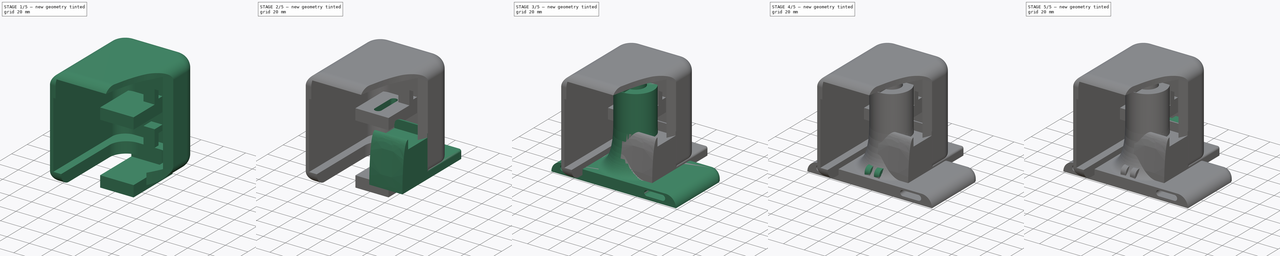
[diagram: build sequence overview — one tinted view per stage of 5, left to right]
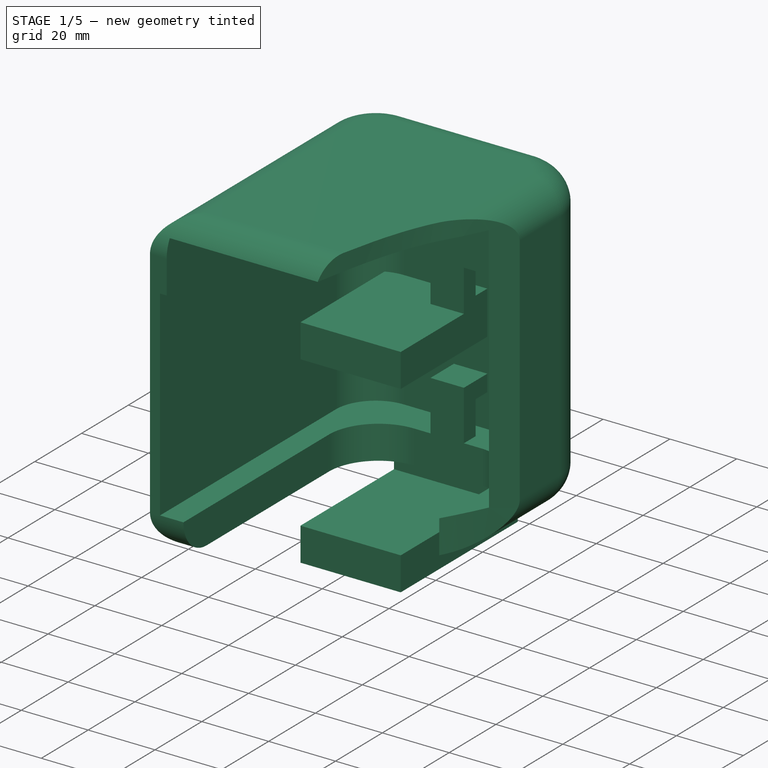
[diagram: stage 1 of 5 — iso view after this stage's code; geometry added in this stage tinted green]
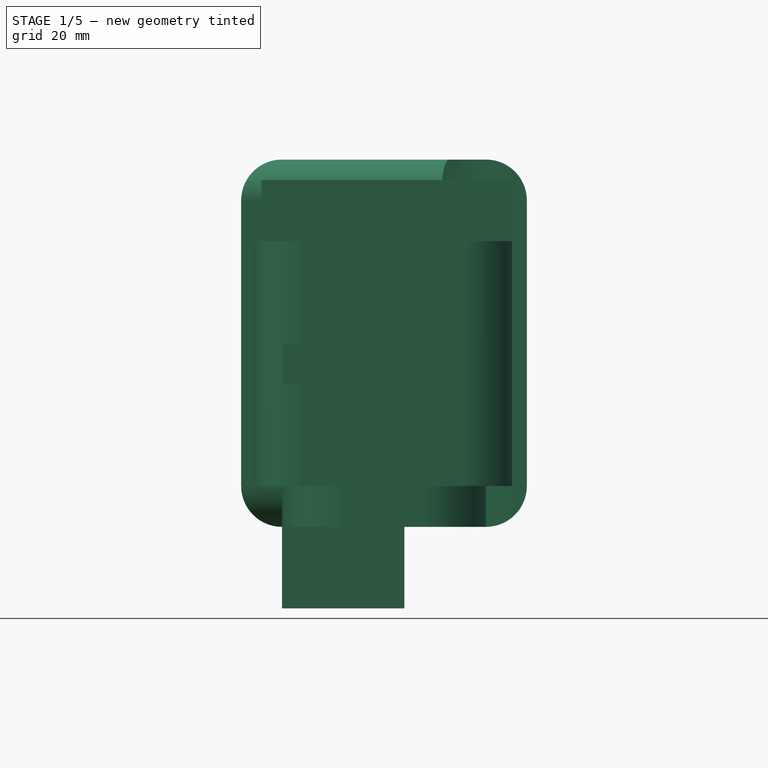
[diagram: stage 1 of 5 — front view after this stage's code; geometry added in this stage tinted green]
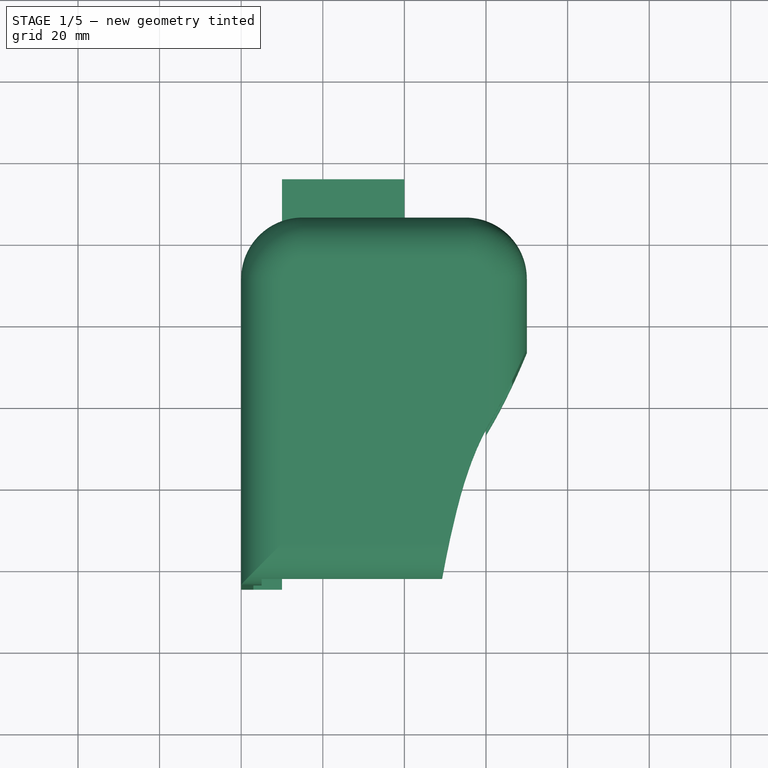
[diagram: stage 1 of 5 — top view after this stage's code; geometry added in this stage tinted green]
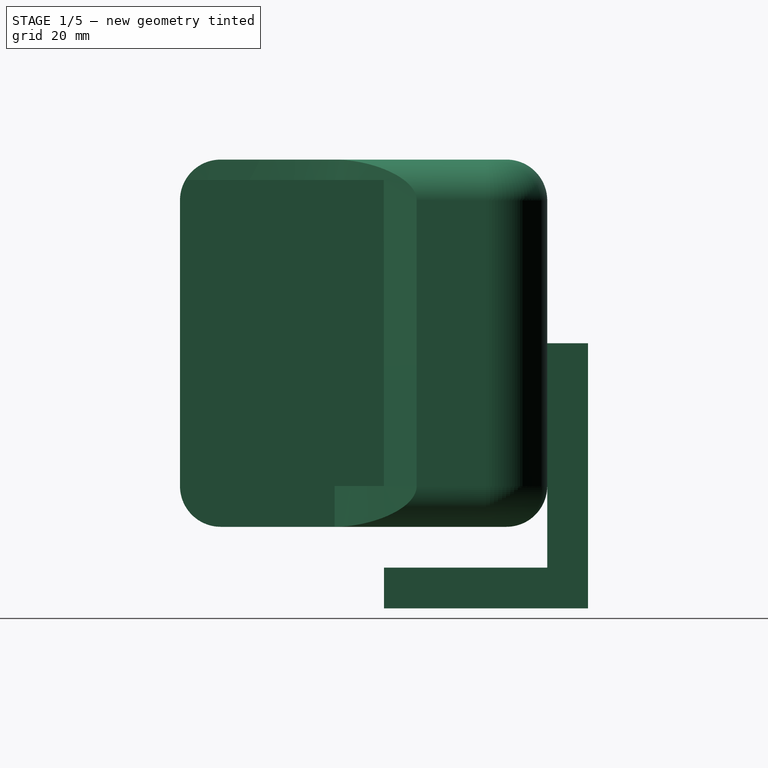
[diagram: stage 1 of 5 — right view after this stage's code; geometry added in this stage tinted green]
FCSTD DOCUMENT  (FreeCAD 1.0R39109 (Git))
Label: Samsung monitor base
License: All rights reserved
LicenseURL: http://en.wikipedia.org/wiki/All_rights_reserved
objects: Sketcher::SketchObject×17, PartDesign::Pocket×9, PartDesign::Fillet×9, PartDesign::Body×8, PartDesign::Pad×6, PartDesign::AdditiveBox×5, PartDesign::AdditiveCylinder×2, PartDesign::Revolution×1, PartDesign::SubtractiveCylinder×1, PartDesign::SubtractiveBox×1, PartDesign::Hole×1, Image::ImagePlane×1
note: 147 computed .brp shape members not serialized (recipe doc carries the construction recipe); baked Part::Feature solids carry a one-line shape summary decoded from their .brp

FEATURE [PartDesign::Body] Body005  label="Monitor left support base"
  AllowCompound = false
  Group = -> [Sketch008,Pad002,Sketch009,Pocket004,Sketch010,Pocket005,Fillet005,Fillet006,Fillet007]
  Origin = -> Origin005
  Placement = pos=(-660.5,0,0) rot=(0,0,1;0rad)
  Tip = -> Fillet007
FEATURE [Sketcher::SketchObject] Sketch011
  ArcFitTolerance = 1e-06
  AttachmentSupport = -> [YZ_Plane006]
  FullyConstrained = true
  MakeInternals = false
  MapMode = 5
  Placement = pos=(0,0,0) rot=(0.57735,0.57735,0.57735;2.0944rad)
  sketch-geometry (8):
    g0: LineSegment StartX=5 StartY=-10 StartZ=0 EndX=5 EndY=-20 EndZ=0
    g1: LineSegment StartX=5 StartY=-20 StartZ=0 EndX=55 EndY=-20 EndZ=0
    g2: LineSegment StartX=5 StartY=-10 StartZ=0 EndX=45 EndY=-10 EndZ=0
    g3: LineSegment StartX=45 StartY=-10 StartZ=0 EndX=45 EndY=35 EndZ=0
    g4: LineSegment StartX=55 StartY=-20 StartZ=0 EndX=55 EndY=45 EndZ=0
    g5: LineSegment StartX=45 StartY=35 StartZ=0 EndX=5 EndY=35 EndZ=0
    g6: LineSegment StartX=5 StartY=35 StartZ=0 EndX=5 EndY=45 EndZ=0
    g7: LineSegment StartX=5 StartY=45 StartZ=0 EndX=55 EndY=45 EndZ=0
  constraints (24):
    c: Distance(g0) = 10
    c: Vertical(g0)
    c: Distance(g1) = 50
    c: Horizontal(g1)
    c: Distance(g1,g-1) = 20
    c: DistanceX(g-1,g1) = 5
    c: Coincident(g0,g1)
    c: Distance(g2) = 40
    c: Coincident(g2,g0)
    c: Parallel(g-1,g2)
    c: Distance(g3) = 45
    c: Coincident(g3,g2)
    c: Vertical(g3)
    c: Distance(g4) = 65
    c: Coincident(g4,g1)
    c: Vertical(g4)
    c: Distance(g5) = 40
    c: Coincident(g5,g3)
    c: Horizontal(g5)
    c: Distance(g6) = 10
    c: Coincident(g6,g5)
    c: Vertical(g6)
    c: Coincident(g7,g6)
    c: Coincident(g7,g4)
FEATURE [PartDesign::Pad] Pad003
  Direction = (1,0,0)
  Length = 30
  Length2 = 10
  Placement = pos=(0,0,0) rot=(1,1,1;2.0944rad)
  Profile = -> Sketch011
  ReferenceAxis = -> Sketch011 [N_Axis]
  Refine = true
  Reversed = true
  Suppressed = false
  Type = 0
FEATURE [PartDesign::Body] Body006  label="Monitor left support clamp"
  AllowCompound = false
  Group = -> [Sketch011,Pad003,Sketch012,Pocket006]
  Origin = -> Origin006
  Placement = pos=(-630.5,17.7,0) rot=(0,0,1;0rad)
  Tip = -> Pocket006
FEATURE [Sketcher::SketchObject] Sketch013
  ArcFitTolerance = 1e-06
  AttachmentSupport = -> [XY_Plane007]
  FullyConstrained = true
  MakeInternals = false
  MapMode = 5
  sketch-geometry (15):
    g0: ArcOfCircle CenterX=15 CenterY=30 CenterZ=0 NormalX=0 NormalY=0 NormalZ=1 AngleXU=0 Radius=15 StartAngle=0 EndAngle=1.5708
    g1: ArcOfCircle CenterX=-25 CenterY=30 CenterZ=0 NormalX=0 NormalY=0 NormalZ=1 AngleXU=0 Radius=15 StartAngle=1.5708 EndAngle=3.14159
    g2: LineSegment StartX=30 StartY=30 StartZ=0 EndX=30 EndY=13 EndZ=0
    g3: LineSegment StartX=-25 StartY=45 StartZ=0 EndX=15 EndY=45 EndZ=0
    g4: LineSegment StartX=-40 StartY=30 StartZ=0 EndX=-40 EndY=-45 EndZ=0
    g5: LineSegment StartX=-40 StartY=-45 StartZ=0 EndX=9 EndY=-45 EndZ=0
    g6: Circle [constr] CenterX=9 CenterY=-45 CenterZ=0 NormalX=0 NormalY=0 NormalZ=1 AngleXU=0 Radius=1
    g7: Circle [constr] CenterX=30 CenterY=13 CenterZ=0 NormalX=0 NormalY=0 NormalZ=1 AngleXU=0 Radius=1
    g8: BSplineCurve PolesCount=5 KnotsCount=4 Degree=2 IsPeriodic=0
    g9: GeomPoint [constr] X=9 Y=-45 Z=0
    g10: GeomPoint [constr] X=30 Y=13 Z=0
    g11: Circle [constr] CenterX=11.5 CenterY=-31.1608 CenterZ=0 NormalX=0 NormalY=0 NormalZ=1 AngleXU=0 Radius=1
    g12: GeomPoint [constr] X=14 Y=-22.5 Z=0
    g13: Circle [constr] CenterX=17.0309 CenterY=-12 CenterZ=0 NormalX=0 NormalY=0 NormalZ=1 AngleXU=0 Radius=1
    g14: Circle [constr] CenterX=25.2 CenterY=1.7 CenterZ=0 NormalX=0 NormalY=0 NormalZ=1 AngleXU=0 Radius=1
  constraints (41):
    c: Angle(g0) = 1.5708
    c: Angle(g1) = 1.5708
    c: Distance(g1,g-2) = 25
    c: Radius(g0) = 15
    c: DistanceY(g-1,g0) = 30
    c: Distance(g0,g-1) = 30
    c: Distance(g0,g-2) = 15
    c: Distance(g2) = 17
    c: Coincident(g2,g0)
    c: Vertical(g2)
    c: Radius(g1) = 15
    c: Distance(g1,g-1) = 30
    c: Distance(g1,g-1) = 30
    c: Coincident(g3,g1)
    c: Coincident(g3,g0)
    c: Distance(g4) = 75
    c: Tangent(g4,g1) = -1.5708
    c: Distance(g5) = 49
    c: Weight(g6) = 1
    c: Equal(g6,g7)
    c: InternalAlignment(g6,g8)
    c: InternalAlignment(g7,g8)
    c: InternalAlignment(g9,g8)
    c: InternalAlignment(g10,g8)
    c: Coincident(g6,g5)
    c: Coincident(g7,g2)
    c: InternalAlignment(g11,g8)
    c: Equal(g11,g6)
    c: InternalAlignment(g12,g8)
    c: InternalAlignment(g13,g8)
    c: Equal(g13,g6)
    c: InternalAlignment(g14,g8)
    c: Equal(g14,g6)
    c: Distance(g12,g-2) = 14
    c: DistanceY(g12,g-1) = 22.5
    c: Coincident(g4,g5)
    c: Parallel(g5,g-1)
    c: Distance(g11,g-2) = 11.5
    c: DistanceY(g-1,g14) = 1.7
    c: DistanceX(g14,g8) = 4.8
    c: Distance(g13,g-1) = 12
FEATURE [Image::ImagePlane] Scanned_Document  label="Scanned Document"
  Placement = pos=(249.2,39,0) rot=(0,0,1;0rad)
  XSize = 74.1681
  YSize = 182.372
FEATURE [PartDesign::Pad] Pad004
  Direction = (0,0,1)
  Length = 90
  Length2 = 10
  Profile = -> Sketch013
  ReferenceAxis = -> Sketch013 [N_Axis]
  Refine = true
  Suppressed = false
  Type = 0
FEATURE [Sketcher::SketchObject] Sketch014
  ArcFitTolerance = 1e-06
  AttachmentSupport = -> [XY_Plane007]
  FullyConstrained = true
  MakeInternals = false
  MapMode = 5
  sketch-geometry (15):
    g0: ArcOfCircle CenterX=15 CenterY=30 CenterZ=0 NormalX=0 NormalY=0 NormalZ=1 AngleXU=0 Radius=12 StartAngle=0 EndAngle=1.5708
    g1: ArcOfCircle CenterX=-25 CenterY=30 CenterZ=0 NormalX=0 NormalY=0 NormalZ=1 AngleXU=0 Radius=12 StartAngle=1.5708 EndAngle=3.14159
    g2: LineSegment StartX=27 StartY=30 StartZ=0 EndX=27 EndY=13 EndZ=0
    g3: LineSegment StartX=-25 StartY=42 StartZ=0 EndX=15 EndY=42 EndZ=0
    g4: LineSegment StartX=-37 StartY=30 StartZ=0 EndX=-37 EndY=-45 EndZ=0
    g5: LineSegment StartX=-37 StartY=-45 StartZ=0 EndX=12 EndY=-45 EndZ=0
    g6: Circle [constr] CenterX=12 CenterY=-45 CenterZ=0 NormalX=0 NormalY=0 NormalZ=1 AngleXU=0 Radius=1
    g7: Circle [constr] CenterX=27 CenterY=13 CenterZ=0 NormalX=0 NormalY=0 NormalZ=1 AngleXU=0 Radius=1
    g8: BSplineCurve PolesCount=5 KnotsCount=4 Degree=2 IsPeriodic=0
    g9: GeomPoint [constr] X=12 Y=-45 Z=0
    g10: GeomPoint [constr] X=27 Y=13 Z=0
    g11: Circle [constr] CenterX=11.5 CenterY=-31.1608 CenterZ=0 NormalX=0 NormalY=0 NormalZ=1 AngleXU=0 Radius=1
    g12: GeomPoint [constr] X=15 Y=-22.5 Z=0
    g13: Circle [constr] CenterX=19.2433 CenterY=-12 CenterZ=0 NormalX=0 NormalY=0 NormalZ=1 AngleXU=0 Radius=1
    g14: Circle [constr] CenterX=27 CenterY=1.7 CenterZ=0 NormalX=0 NormalY=0 NormalZ=1 AngleXU=0 Radius=1
  constraints (41):
    c: Angle(g0) = 1.5708
    c: Angle(g1) = 1.5708
    c: Distance(g1,g-2) = 25
    c: Radius(g0) = 12
    c: DistanceY(g-1,g0) = 30
    c: Distance(g0,g-1) = 30
    c: Distance(g0,g-2) = 15
    c: Distance(g2) = 17
    c: Coincident(g2,g0)
    c: Vertical(g2)
    c: Radius(g1) = 12
    c: Distance(g1,g-1) = 30
    c: Distance(g1,g-1) = 30
    c: Coincident(g3,g1)
    c: Coincident(g3,g0)
    c: Distance(g4) = 75
    c: Tangent(g4,g1) = -1.5708
    c: Distance(g5) = 49
    c: Weight(g6) = 1
    c: Equal(g6,g7)
    c: InternalAlignment(g6,g8)
    c: InternalAlignment(g7,g8)
    c: InternalAlignment(g9,g8)
    c: InternalAlignment(g10,g8)
    c: Coincident(g6,g5)
    c: Coincident(g7,g2)
    c: InternalAlignment(g11,g8)
    c: Equal(g11,g6)
    c: InternalAlignment(g12,g8)
    c: InternalAlignment(g13,g8)
    c: Equal(g13,g6)
    c: InternalAlignment(g14,g8)
    c: Equal(g14,g6)
    c: Distance(g12,g-2) = 15
    c: DistanceY(g12,g-1) = 22.5
    c: Coincident(g4,g5)
    c: Parallel(g5,g-1)
    c: Distance(g11,g-2) = 11.5
    c: DistanceY(g-1,g14) = 1.7
    c: DistanceX(g14,g8) = 0
    c: DistanceY(g13,g-1) = 12
FEATURE [PartDesign::Pocket] Pocket007
  BaseFeature = -> Pad004
  Direction = (0,0,-1)
  Length = 70
  Length2 = -10
  Profile = -> Sketch014
  ReferenceAxis = -> Sketch014 [N_Axis]
  Refine = true
  Reversed = true
  Suppressed = false
  Type = 4
FEATURE [PartDesign::Fillet] Fillet008
  Base = -> Pocket007 [Edge17,Edge16,Edge15,Edge10,Edge4,Edge7,Edge6,Edge3,Edge9,Edge11,Edge12,Edge13]
  BaseFeature = -> Pocket007
  Radius = 10
  Refine = true
  SupportTransform = false
  Suppressed = false
  UseAllEdges = false
FEATURE [Sketcher::SketchObject] Sketch015
  ArcFitTolerance = 1e-06
  AttachmentSupport = -> [Fillet008]
  FullyConstrained = true
  MakeInternals = false
  MapMode = 5
  Placement = pos=(0,0,70) rot=(1,0,0;3.14159rad)
  sketch-geometry (4):
    g0: LineSegment StartX=-35 StartY=45 StartZ=0 EndX=-35 EndY=-10 EndZ=0
    g1: LineSegment StartX=-35 StartY=-10 StartZ=0 EndX=26.4 EndY=-10 EndZ=0
    g2: LineSegment StartX=26.4 StartY=-10 StartZ=0 EndX=26.4 EndY=45 EndZ=0
    g3: LineSegment StartX=26.4 StartY=45 StartZ=0 EndX=-35 EndY=45 EndZ=0
  constraints (12):
    c: Coincident(g0,g1)
    c: Coincident(g1,g2)
    c: Coincident(g2,g3)
    c: Coincident(g3,g0)
    c: Vertical(g0)
    c: Vertical(g2)
    c: Horizontal(g1)
    c: Horizontal(g3)
    c: Distance(g0,g2) = 61.4
    c: Distance(g1,g3) = 55
    c: Distance(g0,g-2) = 35
    c: Distance(g-1,g1) = 10
FEATURE [Sketcher::SketchObject] Sketch016
  ArcFitTolerance = 1e-06
  AttachmentSupport = -> [YZ_Plane007]
  FullyConstrained = true
  MakeInternals = false
  MapMode = 5
  Placement = pos=(0,0,0) rot=(0.57735,0.57735,0.57735;2.0944rad)
  sketch-geometry (16):
    g0: LineSegment StartX=32 StartY=63 StartZ=0 EndX=32 EndY=43 EndZ=0
    g1: LineSegment StartX=32 StartY=43 StartZ=0 EndX=42 EndY=43 EndZ=0
    g2: LineSegment StartX=42 StartY=63 StartZ=0 EndX=32 EndY=63 EndZ=0
    g3: LineSegment StartX=42 StartY=43 StartZ=0 EndX=42 EndY=48 EndZ=0
    g4: LineSegment StartX=42 StartY=63 StartZ=0 EndX=42 EndY=58 EndZ=0
    g5: LineSegment StartX=42 StartY=58 StartZ=0 EndX=37 EndY=58 EndZ=0
    g6: LineSegment StartX=42 StartY=48 StartZ=0 EndX=37 EndY=48 EndZ=0
    g7: LineSegment StartX=37 StartY=48 StartZ=0 EndX=37 EndY=58 EndZ=0
    g8: LineSegment StartX=32 StartY=25 StartZ=0 EndX=32 EndY=5 EndZ=0
    g9: LineSegment StartX=32 StartY=5 StartZ=0 EndX=42 EndY=5 EndZ=0
    g10: LineSegment StartX=42 StartY=25 StartZ=0 EndX=32 EndY=25 EndZ=0
    g11: LineSegment StartX=42 StartY=25 StartZ=0 EndX=42 EndY=20 EndZ=0
    g12: LineSegment StartX=42 StartY=5 StartZ=0 EndX=42 EndY=10 EndZ=0
    g13: LineSegment StartX=42 StartY=20 StartZ=0 EndX=37 EndY=20 EndZ=0
    g14: LineSegment StartX=42 StartY=10 StartZ=0 EndX=37 EndY=10 EndZ=0
    g15: LineSegment StartX=37 StartY=10 StartZ=0 EndX=37 EndY=20 EndZ=0
  constraints (49):
    c: Coincident(g0,g1)
    c: Coincident(g2,g0)
    c: Vertical(g0)
    c: Horizontal(g1)
    c: Horizontal(g2)
    c: DistanceX(g1,g1) = 10
    c: Equal(g2,g1)
    c: DistanceX(g-1,g1) = 32
    c: DistanceY(g0,g0) = 20
    c: Distance(g0,g-1) = 43
    c: Distance(g3) = 5
    c: Coincident(g3,g1)
    c: Vertical(g3)
    c: Distance(g4) = 5
    c: Coincident(g4,g2)
    c: Vertical(g4)
    c: Distance(g5) = 5
    c: Coincident(g5,g4)
    c: Horizontal(g5)
    c: Distance(g6) = 5
    c: Horizontal(g6)
    c: PointOnObject(g6,g3)
    c: Coincident(g7,g6)
    c: Coincident(g5,g7)
    c: DistanceY(g7,g7) = 10
    c: Coincident(g8,g9)
    c: Coincident(g10,g8)
    c: Vertical(g8)
    c: Horizontal(g9)
    c: Horizontal(g10)
    c: Distance(g8,g10) = 10
    c: Distance(g9,g10) = 20
    c: Equal(g10,g9)
    c: Distance(g8,g-2) = 32
    c: Distance(g8,g-1) = 5
    c: Distance(g11) = 5
    c: Coincident(g11,g10)
    c: Vertical(g11)
    c: Distance(g12) = 5
    c: Coincident(g12,g9)
    c: Vertical(g12)
    c: Distance(g13) = 5
    c: Coincident(g13,g11)
    c: Horizontal(g13)
    c: Distance(g14) = 5
    c: Coincident(g14,g12)
    c: Horizontal(g14)
    c: Coincident(g15,g14)
    c: Coincident(g13,g15)
FEATURE [PartDesign::Pocket] Pocket008
  BaseFeature = -> Fillet008
  Direction = (0,0,1)
  Length = 15
  Length2 = 64
  Profile = -> Sketch015
  ReferenceAxis = -> Sketch015 [N_Axis]
  Refine = true
  Suppressed = false
  Type = 0
FEATURE [Sketcher::SketchObject] Sketch017
  ArcFitTolerance = 1e-06
  AttachmentSupport = -> [Pocket008]
  FullyConstrained = true
  MakeInternals = false
  MapMode = 5
  Placement = pos=(0,0,10) rot=(0,0,1;0rad)
  sketch-geometry (6):
    g0: ArcOfCircle CenterX=-15 CenterY=17 CenterZ=0 NormalX=0 NormalY=0 NormalZ=1 AngleXU=0 Radius=15 StartAngle=1.5708 EndAngle=3.14159
    g1: ArcOfCircle CenterX=5 CenterY=17 CenterZ=0 NormalX=0 NormalY=0 NormalZ=1 AngleXU=0 Radius=15 StartAngle=0 EndAngle=1.5708
    g2: LineSegment StartX=-15 StartY=32 StartZ=0 EndX=5 EndY=32 EndZ=0
    g3: LineSegment StartX=-30 StartY=17 StartZ=0 EndX=-30 EndY=-45 EndZ=0
    g4: LineSegment StartX=20 StartY=17 StartZ=0 EndX=20 EndY=-45 EndZ=0
    g5: LineSegment StartX=-30 StartY=-45 StartZ=0 EndX=20 EndY=-45 EndZ=0
  constraints (19):
    c: Radius(g0) = 15
    c: Angle(g0) = 1.5708
    c: Distance(g0,g-1) = 17
    c: DistanceY(g-1,g0) = 17
    c: DistanceX(g0,g-1) = 15
    c: Radius(g1) = 15
    c: Angle(g1) = 1.5708
    c: Distance(g1,g-1) = 17
    c: DistanceY(g-1,g1) = 17
    c: Distance(g1,g-2) = 5
    c: Coincident(g2,g0)
    c: Coincident(g1,g2)
    c: Distance(g3) = 62
    c: Tangent(g3,g0) = -1.5708
    c: Coincident(g4,g1)
    c: Vertical(g4)
    c: Coincident(g5,g3)
    c: Equal(g3,g4)
    c: Coincident(g4,g5)
FEATURE [PartDesign::Pocket] Pocket009
  BaseFeature = -> Pocket008
  Direction = (0,0,-1)
  Length = 5
  Length2 = 5
  Profile = -> Sketch017
  ReferenceAxis = -> Sketch017 [N_Axis]
  Refine = true
  Suppressed = false
  Type = 1
FEATURE [PartDesign::Pad] Pad005
  BaseFeature = -> Pocket009
  Direction = (1,0,0)
  Length = 10
  Length2 = 10
  Profile = -> Sketch016
  ReferenceAxis = -> Sketch016 [N_Axis]
  Refine = true
  Reversed = true
  Suppressed = false
  Type = 0
FEATURE [PartDesign::Body] Body007  label="Mounting Pipe Top Cover"
  AllowCompound = false
  Group = -> [Sketch013,Pad004,Sketch014,Pocket007,Fillet008,Sketch015,Sketch016,Pocket008,Sketch017,Pocket009,Pad005]
  Origin = -> Origin007
  Placement = pos=(253,0,0) rot=(0,0,1;0rad)
  Tip = -> Pad005
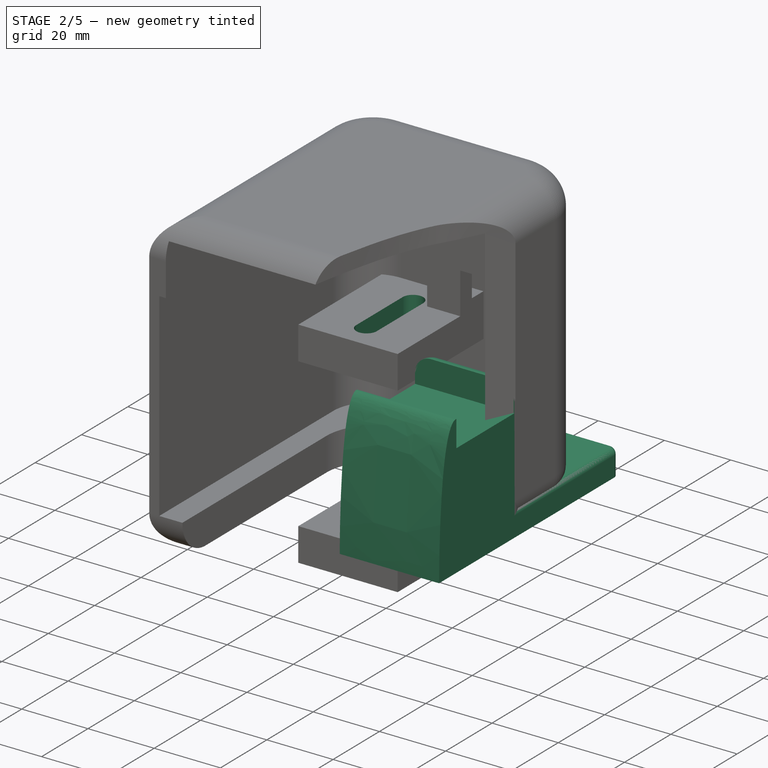
[diagram: stage 2 of 5 — iso view after this stage's code; geometry added in this stage tinted green]
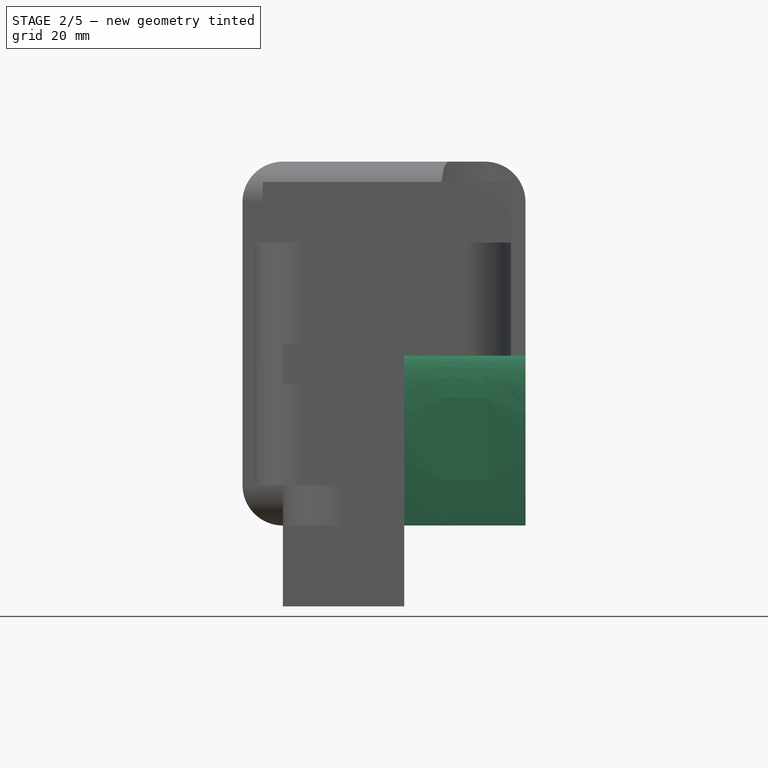
[diagram: stage 2 of 5 — front view after this stage's code; geometry added in this stage tinted green]
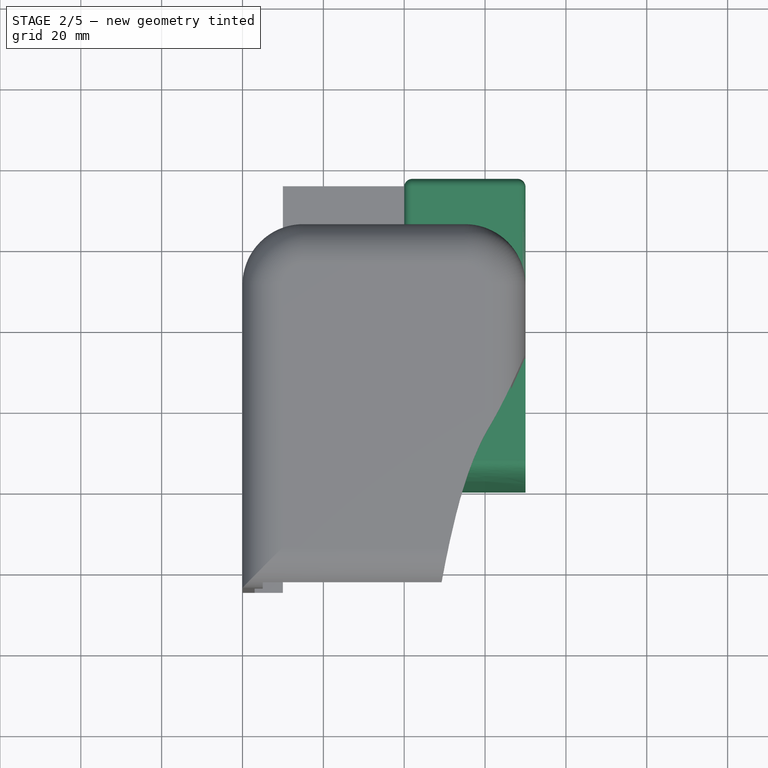
[diagram: stage 2 of 5 — top view after this stage's code; geometry added in this stage tinted green]
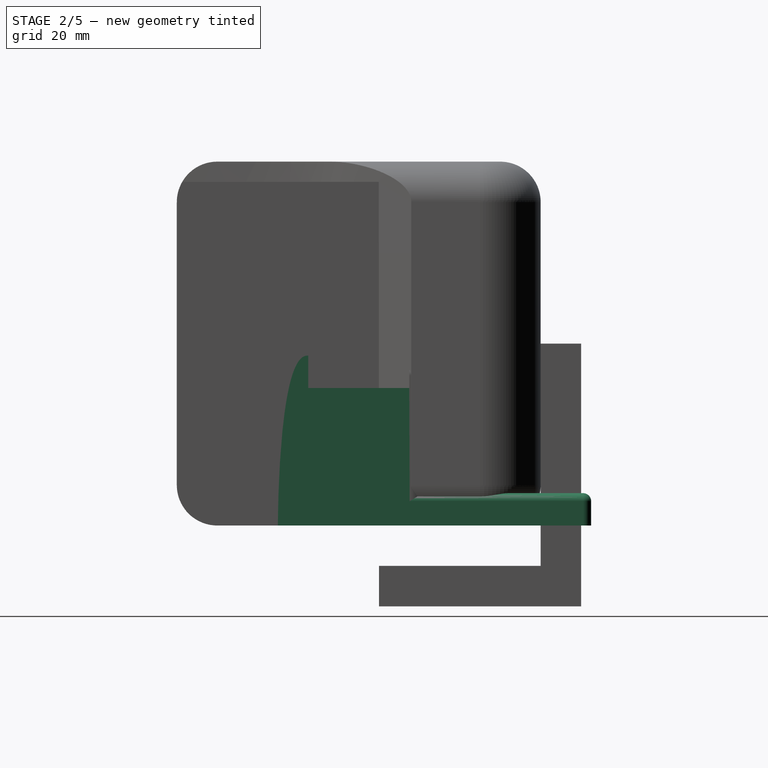
[diagram: stage 2 of 5 — right view after this stage's code; geometry added in this stage tinted green]
FEATURE [PartDesign::Body] Body003  label="Samsung generic base (with 3/8" tube)"
  AllowCompound = false
  Group = -> [Box002,Sketch004,Pad001,Sketch005,Revolution,Box005,Fillet003,Sketch007,Pocket003,Fillet004]
  Origin = -> Origin003
  Placement = pos=(-265,0,0) rot=(0,0,1;0rad)
  Tip = -> Fillet004
FEATURE [Sketcher::SketchObject] Sketch008
  ArcFitTolerance = 1e-06
  AttachmentSupport = -> [YZ_Plane005]
  FullyConstrained = true
  MakeInternals = false
  MapMode = 5
  Placement = pos=(0,0,0) rot=(0.57735,0.57735,0.57735;2.0944rad)
  sketch-geometry (15):
    g0: LineSegment StartX=-20 StartY=0 StartZ=0 EndX=57.5 EndY=0 EndZ=0
    g1: LineSegment StartX=-12.5 StartY=34 StartZ=0 EndX=12.5 EndY=34 EndZ=0
    g2: LineSegment StartX=17.5 StartY=42 StartZ=0 EndX=12.5 EndY=42 EndZ=0
    g3: LineSegment StartX=-12.5 StartY=42 StartZ=0 EndX=-12.5 EndY=34 EndZ=0
    g4: LineSegment StartX=12.5 StartY=42 StartZ=0 EndX=12.5 EndY=34 EndZ=0
    g5-g8: Circle [constr] x4 (B-spline internal-alignment scaffolding for g9; pole/knot coordinates omitted)
    g9: BSplineCurve PolesCount=4 KnotsCount=2 Degree=3 IsPeriodic=0
    g10: GeomPoint [constr] X=-12.5 Y=42 Z=0
    g11: GeomPoint [constr] X=-20 Y=0 Z=0
    g12: LineSegment StartX=17.5 StartY=42 StartZ=0 EndX=17.5 EndY=8 EndZ=0
    g13: LineSegment StartX=57.5 StartY=0 StartZ=0 EndX=57.5 EndY=8 EndZ=0
    g14: LineSegment StartX=17.5 StartY=8 StartZ=0 EndX=57.5 EndY=8 EndZ=0
  constraints (37):
    c: Horizontal(g0)
    c: PointOnObject(g0,g-1)
    c: Distance(g0,g-2) = 20
    c: Distance(g1) = 25
    c: Horizontal(g1)
    c: Distance(g1,g-1) = 34
    c: Horizontal(g2)
    c: Coincident(g3,g1)
    c: Vertical(g3)
    c: Coincident(g4,g2)
    c: Coincident(g4,g1)
    c: Vertical(g4)
    c: Equal(g5,g6)
    c: Equal(g5,g7)
    c: Equal(g5,g8)
    c: InternalAlignment(g5-g8 -> g9) x4
    c: InternalAlignment(g10,g9)
    c: InternalAlignment(g11,g9)
    c: Coincident(g5,g3)
    c: Coincident(g7,g0)
    c: Coincident(g8,g0)
    c: DistanceY(g-1,g6) = 43
    c: DistanceX(g6,g-1) = 20
    c: DistanceX(g1,g-1) = 12.5
    c: Equal(g3,g4)
    c: DistanceY(g4,g4) = 8
    c: Weight(g6) = 1
    c: DistanceX(g2,g2) = 5
    c: Coincident(g12,g2)
    c: Vertical(g12)
    c: Distance(g12,g0) = 8
    c: Distance(g13) = 8
    c: Coincident(g13,g0)
    c: Vertical(g13)
    c: Coincident(g14,g12)
    c: Coincident(g14,g13)
    c: DistanceX(g14,g14) = 40
FEATURE [PartDesign::Pad] Pad002
  Direction = (1,0,0)
  Length = 30
  Length2 = 10
  Placement = pos=(0,0,0) rot=(1,1,1;2.0944rad)
  Profile = -> Sketch008
  ReferenceAxis = -> Sketch008 [N_Axis]
  Refine = true
  Suppressed = false
  Type = 0
FEATURE [Sketcher::SketchObject] Sketch009
  ArcFitTolerance = 1e-06
  AttachmentSupport = -> [Pad002]
  FullyConstrained = true
  MakeInternals = false
  MapMode = 5
  Placement = pos=(0,1.8e-15,8) rot=(0,0,-1;1.5708rad)
  sketch-geometry (1):
    g0: Circle CenterX=-42.5 CenterY=15 CenterZ=0 NormalX=0 NormalY=0 NormalZ=1 AngleXU=0 Radius=3.1
  constraints (3):
    c: Diameter(g0) = 6.2
    c: Distance(g0,g-1) = 15
    c: DistanceX(g0,g-1) = 42.5
FEATURE [PartDesign::Pocket] Pocket004
  BaseFeature = -> Pad002
  Direction = (0,0,-1)
  Length = 5
  Length2 = 5
  Placement = pos=(0,0,0) rot=(1,1,1;2.0944rad)
  Profile = -> Sketch009
  ReferenceAxis = -> Sketch009 [N_Axis]
  Refine = true
  Suppressed = false
  Type = 1
FEATURE [Sketcher::SketchObject] Sketch010
  ArcFitTolerance = 1e-06
  AttachmentSupport = -> [Pocket004]
  FullyConstrained = true
  MakeInternals = false
  MapMode = 5
  Placement = pos=(0,0,0) rot=(0.707107,0.707107,0;3.14159rad)
  sketch-geometry (7):
    g0: LineSegment StartX=48.7 StartY=15 StartZ=0 EndX=45.6 EndY=20.3693 EndZ=0
    g1: LineSegment StartX=45.6 StartY=20.3693 StartZ=0 EndX=39.4 EndY=20.3694 EndZ=0
    g2: LineSegment StartX=39.4 StartY=20.3694 StartZ=0 EndX=36.3 EndY=15 EndZ=0
    g3: LineSegment StartX=36.3 StartY=15 StartZ=0 EndX=39.4 EndY=9.63065 EndZ=0
    g4: LineSegment StartX=39.4 StartY=9.63065 StartZ=0 EndX=45.6 EndY=9.63063 EndZ=0
    g5: LineSegment StartX=45.6 StartY=9.63063 StartZ=0 EndX=48.7 EndY=15 EndZ=0
    g6: Circle [constr] CenterX=42.5 CenterY=15 CenterZ=0 NormalX=0 NormalY=0 NormalZ=1 AngleXU=0 Radius=6.2
  constraints (17):
    c: Coincident(g0,g1)
    c: Coincident(g1,g2)
    c: Coincident(g2,g3)
    c: Coincident(g3,g4)
    c: Coincident(g4,g5)
    c: Coincident(g5,g0)
    c: Equal(g0, g1-g5) x5
    c: PointOnObject(g0,g6)
    c: PointOnObject(g1,g6)
    c: PointOnObject(g2,g6)
    c: PointOnObject(g3,g6)
    c: PointOnObject(g4,g6)
    c: PointOnObject(g5,g6)
    c: Radius(g6) = 6.2
    c: DistanceX(g-1,g6) = 42.5
    c: DistanceY(g-1,g6) = 15
    c: DistanceX(g1,g1) = 6.2
FEATURE [PartDesign::Pocket] Pocket005
  BaseFeature = -> Pocket004
  Direction = (0,0,1)
  Length = 5
  Length2 = 5
  Placement = pos=(0,0,0) rot=(1,1,1;2.0944rad)
  Profile = -> Sketch010
  ReferenceAxis = -> Sketch010 [N_Axis]
  Refine = true
  Suppressed = false
  Type = 0
FEATURE [PartDesign::Fillet] Fillet005
  Base = -> Pocket005 [Edge25,Edge19]
  BaseFeature = -> Pocket005
  Placement = pos=(0,0,0) rot=(1,1,1;2.0944rad)
  Radius = 4.9
  Refine = true
  SupportTransform = false
  Suppressed = false
  UseAllEdges = false
FEATURE [PartDesign::Fillet] Fillet006
  Base = -> Fillet005 [Edge11]
  BaseFeature = -> Fillet005
  Placement = pos=(0,0,0) rot=(1,1,1;2.0944rad)
  Radius = 4.9
  Refine = true
  SupportTransform = false
  Suppressed = false
  UseAllEdges = false
FEATURE [PartDesign::Fillet] Fillet007
  Base = -> Fillet006 [Edge21,Edge5,Edge20,Edge30,Edge7]
  BaseFeature = -> Fillet006
  Placement = pos=(0,0,0) rot=(1,1,1;2.0944rad)
  Radius = 2
  Refine = true
  SupportTransform = false
  Suppressed = false
  UseAllEdges = false
FEATURE [Sketcher::SketchObject] Sketch012
  ArcFitTolerance = 1e-06
  AttachmentSupport = -> [Pad003]
  FullyConstrained = true
  MakeInternals = false
  MapMode = 5
  Placement = pos=(0,9.9e-15,45) rot=(0,0,-1;1.5708rad)
  sketch-geometry (4):
    g0: ArcOfCircle CenterX=-33 CenterY=-15 CenterZ=0 NormalX=0 NormalY=0 NormalZ=1 AngleXU=0 Radius=3.1 StartAngle=1.5708 EndAngle=4.71239
    g1: ArcOfCircle CenterX=-13 CenterY=-15 CenterZ=0 NormalX=0 NormalY=0 NormalZ=1 AngleXU=0 Radius=3.1 StartAngle=4.71239 EndAngle=7.85398
    g2: LineSegment StartX=-33 StartY=-11.9 StartZ=0 EndX=-13 EndY=-11.9 EndZ=0
    g3: LineSegment StartX=-33 StartY=-18.1 StartZ=0 EndX=-13 EndY=-18.1 EndZ=0
  constraints (10):
    c: Tangent(g0,g2) = 1.5708
    c: Tangent(g0,g3) = -1.5708
    c: Tangent(g1,g2) = 1.5708
    c: Tangent(g1,g3) = -1.5708
    c: Equal(g0,g1)
    c: Horizontal(g3)
    c: Distance(g0,g1) = 20
    c: Radius(g0) = 3.1
    c: Distance(g1,g-2) = 13
    c: DistanceY(g1,g-1) = 15
FEATURE [PartDesign::Pocket] Pocket006
  BaseFeature = -> Pad003
  Direction = (0,0,-1)
  Length = 10
  Length2 = 5
  Placement = pos=(0,0,0) rot=(1,1,1;2.0944rad)
  Profile = -> Sketch012
  ReferenceAxis = -> Sketch012 [N_Axis]
  Refine = true
  Suppressed = false
  Type = 0
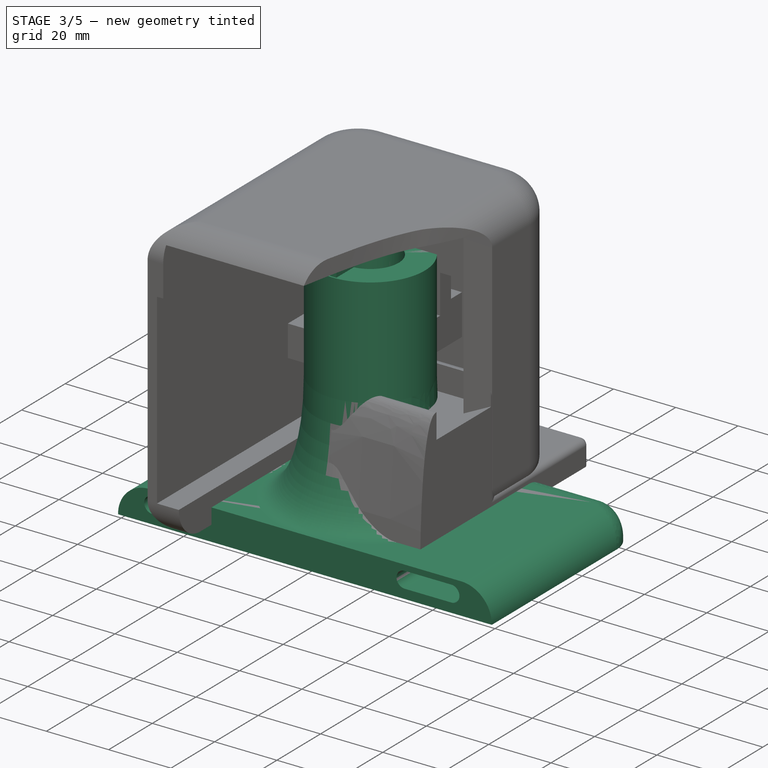
[diagram: stage 3 of 5 — iso view after this stage's code; geometry added in this stage tinted green]
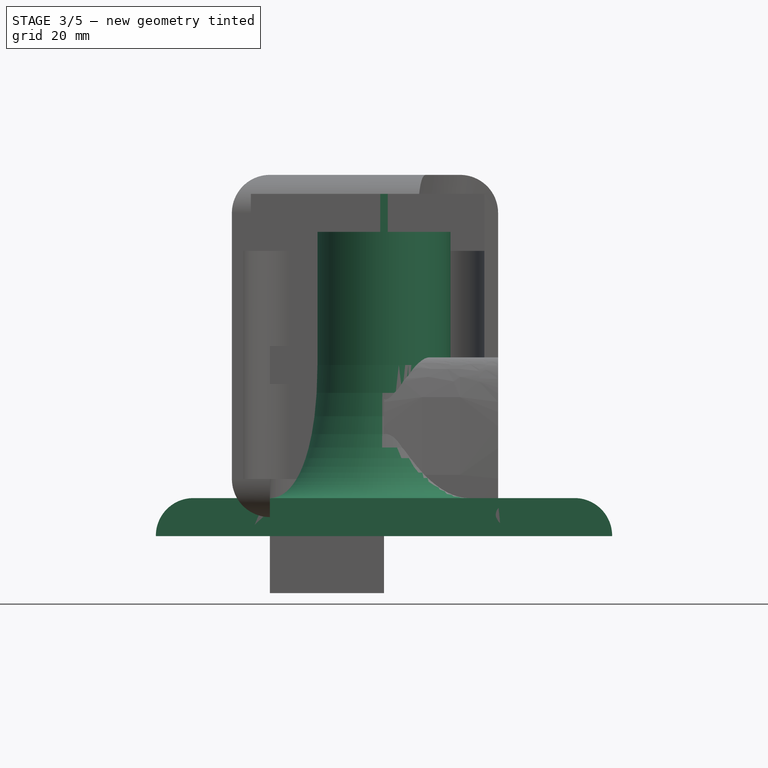
[diagram: stage 3 of 5 — front view after this stage's code; geometry added in this stage tinted green]
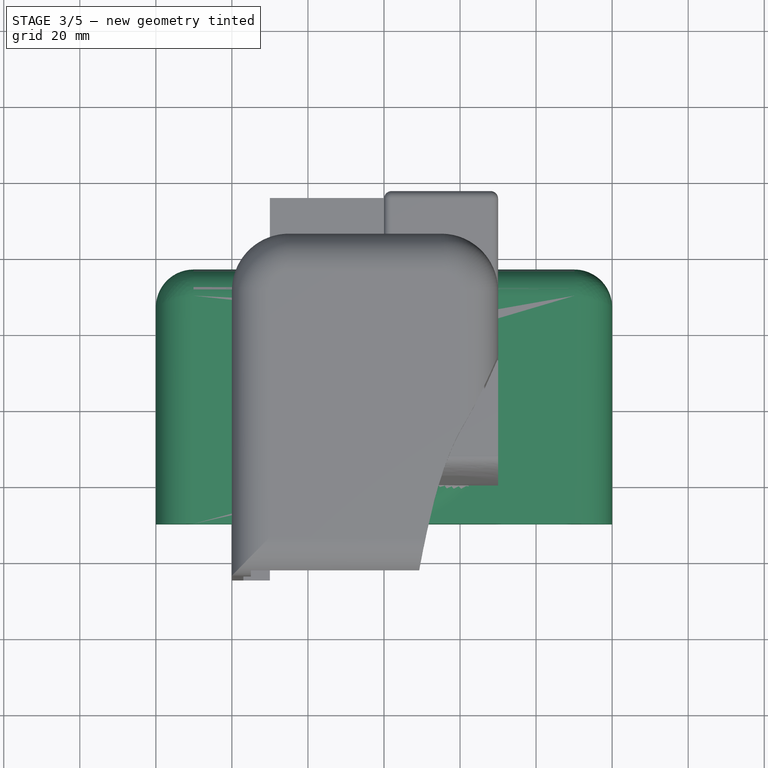
[diagram: stage 3 of 5 — top view after this stage's code; geometry added in this stage tinted green]
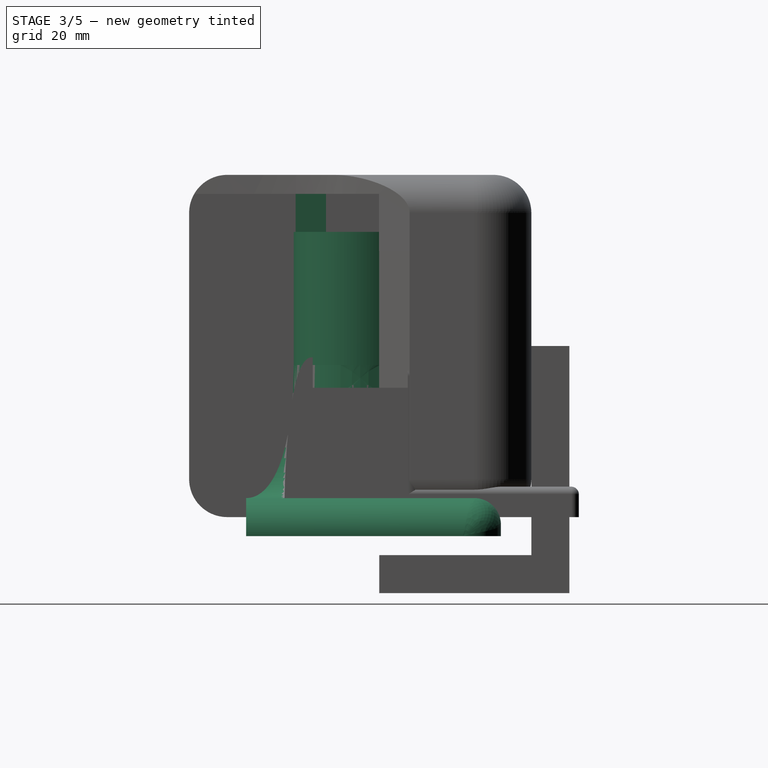
[diagram: stage 3 of 5 — right view after this stage's code; geometry added in this stage tinted green]
FEATURE [PartDesign::Body] Body002  label="Left halve block"
  AllowCompound = false
  Group = -> [Box001]
  Origin = -> Origin002
  Placement = pos=(-5.5,-5,0) rot=(0,0,1;0rad)
  Tip = -> Box001
FEATURE [PartDesign::AdditiveBox] Box002
  AttacherType = Attacher::AttachEngine3D
  AttachmentOffset = pos=(-60,-30,-5) rot=(0,0,1;0rad)
  AttachmentSupport = -> [XY_Plane003]
  Height = 10
  Length = 120
  MapMode = 5
  Placement = pos=(-60,-30,-5) rot=(0,0,1;0rad)
  Suppressed = false
  Width = 67
FEATURE [Sketcher::SketchObject] Sketch004
  ArcFitTolerance = 1e-06
  AttachmentSupport = -> [Box002]
  FullyConstrained = true
  MakeInternals = false
  MapMode = 5
  Placement = pos=(-60,-30,5) rot=(0,0,1;0rad)
  sketch-geometry (2):
    g0: Circle CenterX=60 CenterY=30 CenterZ=0 NormalX=0 NormalY=0 NormalZ=1 AngleXU=0 Radius=17.5
    g1: Circle CenterX=60 CenterY=30 CenterZ=0 NormalX=0 NormalY=0 NormalZ=1 AngleXU=0 Radius=9.1
  constraints (5):
    c: Diameter(g0) = 35
    c: Distance(g0,g-2) = 60
    c: Distance(g0,g-1) = 30
    c: Diameter(g1) = 18.2
    c: Coincident(g1,g0)
FEATURE [PartDesign::Pad] Pad001
  BaseFeature = -> Box002
  Direction = (0,0,1)
  Length = 70
  Length2 = 10
  Placement = pos=(-60,-30,-5) rot=(0,0,1;0rad)
  Profile = -> Sketch004
  ReferenceAxis = -> Sketch004 [N_Axis]
  Suppressed = false
  Type = 0
FEATURE [Sketcher::SketchObject] Sketch005
  ArcFitTolerance = 1e-06
  AttachmentSupport = -> [XZ_Plane003]
  FullyConstrained = true
  MakeInternals = false
  MapMode = 5
  Placement = pos=(0,0,0) rot=(1,0,0;1.5708rad)
  sketch-geometry (8):
    g0: Circle [constr] CenterX=30 CenterY=5 CenterZ=0 NormalX=0 NormalY=0 NormalZ=1 AngleXU=0 Radius=1
    g1: Circle [constr] CenterX=17.5 CenterY=5 CenterZ=0 NormalX=0 NormalY=0 NormalZ=1 AngleXU=0 Radius=1.89
    g2: Circle [constr] CenterX=17.5 CenterY=40 CenterZ=0 NormalX=0 NormalY=0 NormalZ=1 AngleXU=0 Radius=5.2
    g3: BSplineCurve PolesCount=3 KnotsCount=2 Degree=2 IsPeriodic=0
    g4: GeomPoint [constr] X=30 Y=5 Z=0
    g5: GeomPoint [constr] X=17.5 Y=40 Z=0
    g6: LineSegment StartX=17.5 StartY=40 StartZ=0 EndX=17.5 EndY=5 EndZ=0
    g7: LineSegment StartX=17.5 StartY=5 StartZ=0 EndX=30 EndY=5 EndZ=0
  constraints (18):
    c: Weight(g0) = 1
    c: InternalAlignment(g0,g3)
    c: InternalAlignment(g1,g3)
    c: InternalAlignment(g2,g3)
    c: InternalAlignment(g4,g3)
    c: InternalAlignment(g5,g3)
    c: Distance(g3,g-1) = 5
    c: Distance(g3,g-2) = 17.5
    c: Vertical(g6)
    c: Coincident(g6,g3)
    c: Coincident(g6,g1)
    c: Coincident(g7,g1)
    c: Coincident(g7,g3)
    c: Horizontal(g7)
    c: DistanceX(g7,g7) = 12.5
    c: DistanceY(g6,g6) = 35
    c: Weight(g1) = 1.89
    c: Weight(g2) = 5.2
FEATURE [PartDesign::Revolution] Revolution
  Angle = 360
  Angle2 = 60
  Axis = (0,2e-16,1)
  Base = (0,0,0)
  BaseFeature = -> Pad001
  Placement = pos=(-60,-30,-5) rot=(0,0,1;0rad)
  Profile = -> Sketch005
  ReferenceAxis = -> Sketch005 [V_Axis]
  Reversed = true
  Suppressed = false
  Type = 0
FEATURE [PartDesign::Body] Body004  label="generic base gasket"
  AllowCompound = false
  Group = -> [Cylinder001,Fillet001,Box003,Cylinder002,Fillet002,Box004,Sketch006,Hole]
  Origin = -> Origin004
  Placement = pos=(-265,0,75) rot=(0,0,1;0rad)
  Tip = -> Hole
FEATURE [PartDesign::AdditiveBox] Box005
  AttacherType = Attacher::AttachEngine3D
  AttachmentOffset = pos=(-1,-17,75) rot=(0,0,1;0rad)
  AttachmentSupport = -> [XY_Plane003]
  BaseFeature = -> Revolution
  Height = 12
  Length = 2
  MapMode = 5
  Placement = pos=(-1,-17,75) rot=(0,0,1;0rad)
  Suppressed = false
  Width = 8
FEATURE [PartDesign::Fillet] Fillet003
  Base = -> Box005 [Edge7]
  BaseFeature = -> Box005
  Placement = pos=(-1,-17,75) rot=(0,0,1;0rad)
  Radius = 7
  SupportTransform = false
  Suppressed = false
  UseAllEdges = false
FEATURE [Sketcher::SketchObject] Sketch007
  ArcFitTolerance = 1e-06
  AttachmentSupport = -> [Fillet003]
  FullyConstrained = true
  MakeInternals = false
  MapMode = 5
  Placement = pos=(-1,-30,75) rot=(1,0,0;1.5708rad)
  sketch-geometry (8):
    g0: ArcOfCircle CenterX=-48 CenterY=-74.4 CenterZ=0 NormalX=0 NormalY=0 NormalZ=1 AngleXU=0 Radius=2.6 StartAngle=1.5708 EndAngle=4.71239
    g1: ArcOfCircle CenterX=-33 CenterY=-74.4 CenterZ=0 NormalX=0 NormalY=0 NormalZ=1 AngleXU=0 Radius=2.6 StartAngle=4.71239 EndAngle=7.85398
    g2: LineSegment StartX=-48 StartY=-71.8 StartZ=0 EndX=-33 EndY=-71.8 EndZ=0
    g3: LineSegment StartX=-48 StartY=-77 StartZ=0 EndX=-33 EndY=-77 EndZ=0
    g4: ArcOfCircle CenterX=33 CenterY=-74.4 CenterZ=0 NormalX=0 NormalY=0 NormalZ=1 AngleXU=0 Radius=2.6 StartAngle=1.5708 EndAngle=4.71239
    g5: ArcOfCircle CenterX=48 CenterY=-74.4 CenterZ=0 NormalX=0 NormalY=0 NormalZ=1 AngleXU=0 Radius=2.6 StartAngle=4.71239 EndAngle=7.85398
    g6: LineSegment StartX=33 StartY=-71.8 StartZ=0 EndX=48 EndY=-71.8 EndZ=0
    g7: LineSegment StartX=33 StartY=-77 StartZ=0 EndX=48 EndY=-77 EndZ=0
  constraints (20):
    c: Tangent(g0,g2) = 1.5708
    c: Tangent(g0,g3) = -1.5708
    c: Tangent(g1,g2) = 1.5708
    c: Tangent(g1,g3) = -1.5708
    c: Equal(g0,g1)
    c: Horizontal(g3)
    c: Distance(g0,g1) = 15
    c: Radius(g0) = 2.6
    c: Distance(g1,g-1) = 74.4
    c: DistanceX(g1,g-1) = 33
    c: Tangent(g4,g6) = 1.5708
    c: Tangent(g4,g7) = -1.5708
    c: Tangent(g5,g6) = 1.5708
    c: Tangent(g5,g7) = -1.5708
    c: Equal(g4,g5)
    c: Horizontal(g7)
    c: Distance(g4,g5) = 15
    c: Radius(g4) = 2.6
    c: Distance(g4,g-2) = 33
    c: Distance(g4,g-1) = 74.4
FEATURE [PartDesign::Pocket] Pocket003
  BaseFeature = -> Fillet003
  Direction = (0,1,-2e-16)
  Length = 40
  Length2 = 5
  Placement = pos=(-1,-17,75) rot=(0,0,1;0rad)
  Profile = -> Sketch007
  ReferenceAxis = -> Sketch007 [N_Axis]
  Suppressed = false
  Type = 0
FEATURE [PartDesign::Fillet] Fillet004
  Base = -> Pocket003 [Edge4,Edge1]
  BaseFeature = -> Pocket003
  Placement = pos=(-1,-17,75) rot=(0,0,1;0rad)
  Radius = 9.9
  SupportTransform = false
  Suppressed = false
  UseAllEdges = false
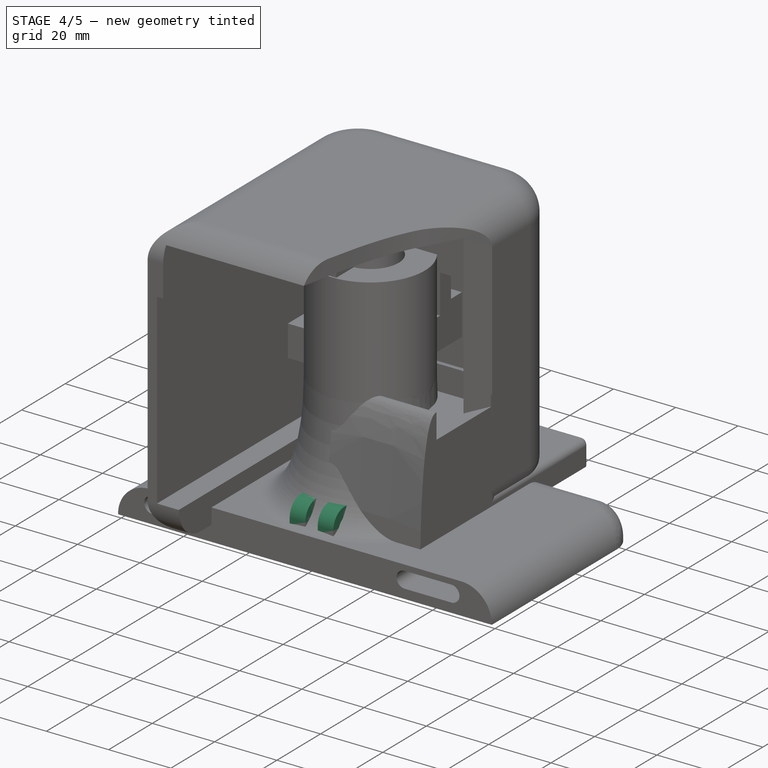
[diagram: stage 4 of 5 — iso view after this stage's code; geometry added in this stage tinted green]
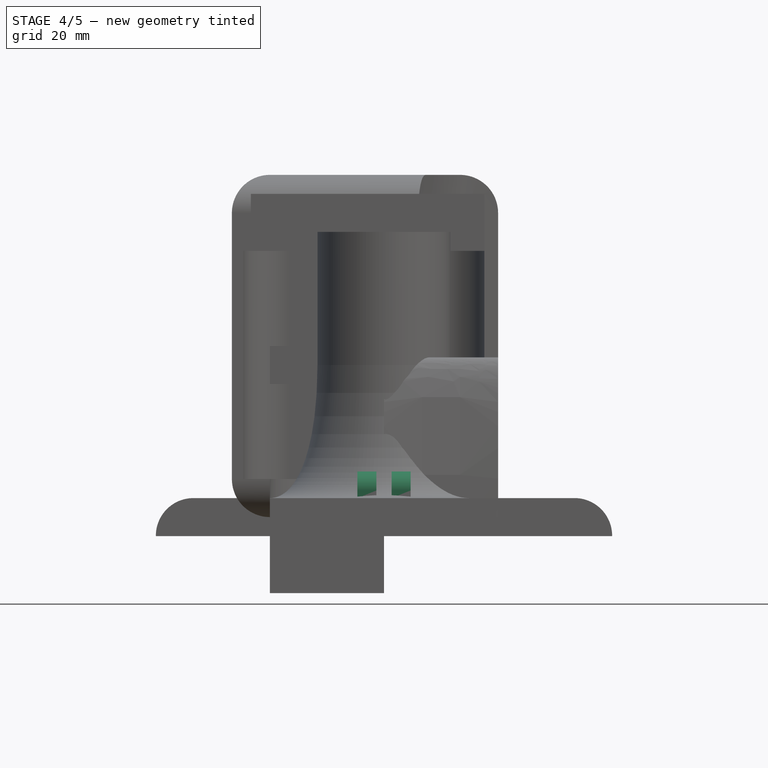
[diagram: stage 4 of 5 — front view after this stage's code; geometry added in this stage tinted green]
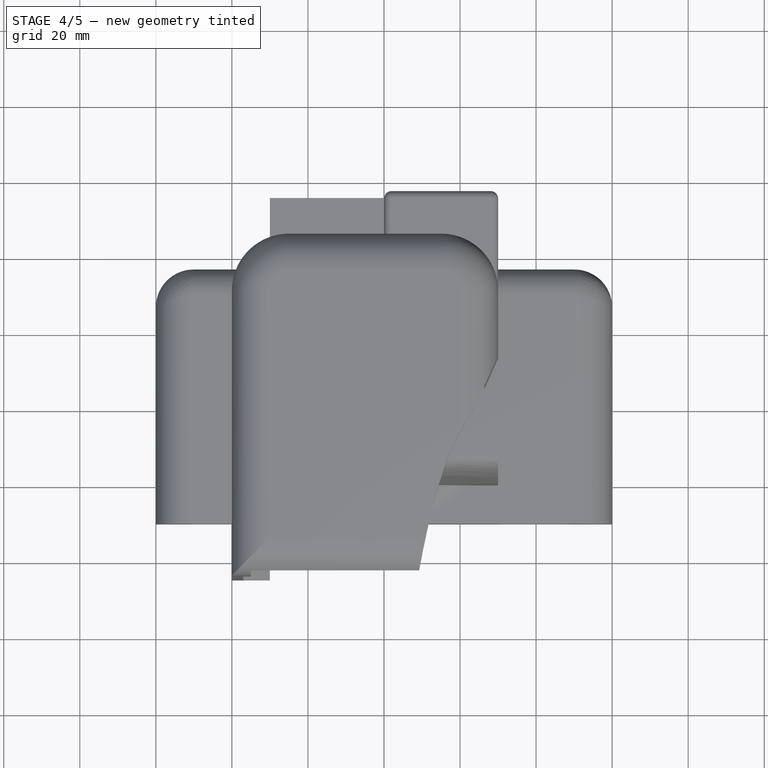
[diagram: stage 4 of 5 — top view after this stage's code; geometry added in this stage tinted green]
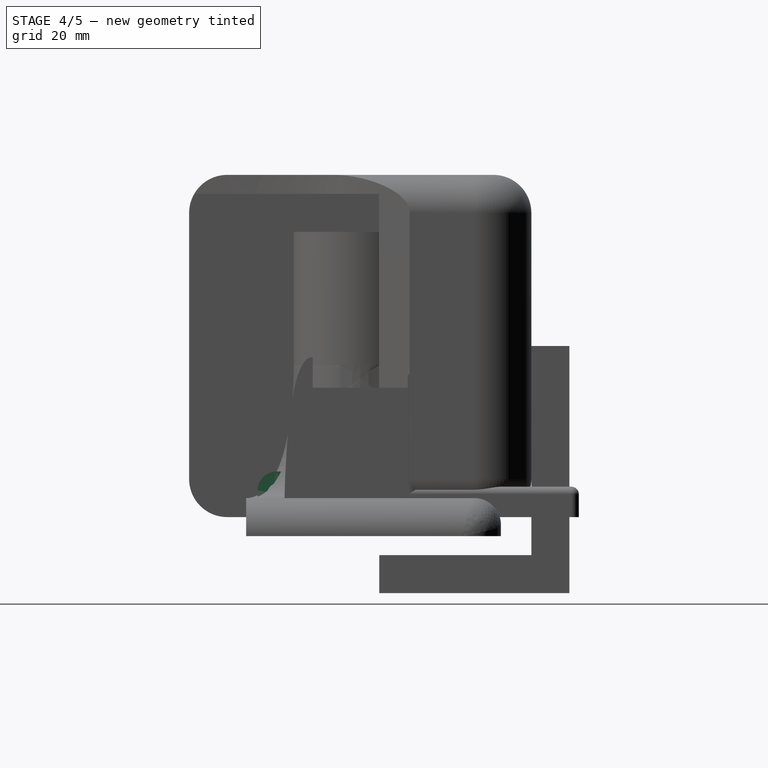
[diagram: stage 4 of 5 — right view after this stage's code; geometry added in this stage tinted green]
FEATURE [PartDesign::AdditiveCylinder] Cylinder001
  Angle = 360
  AttacherType = Attacher::AttachEngine3D
  AttachmentSupport = -> [XY_Plane003]
  FirstAngle = 0
  Height = 12
  MapMode = 5
  Radius = 17.5
  SecondAngle = 0
  Suppressed = false
FEATURE [PartDesign::Fillet] Fillet001
  Base = -> Cylinder001 [Edge3]
  BaseFeature = -> Cylinder001
  Radius = 5
  SupportTransform = false
  Suppressed = false
  UseAllEdges = false
FEATURE [PartDesign::AdditiveBox] Box003
  AttacherType = Attacher::AttachEngine3D
  AttachmentOffset = pos=(-7,-27,0) rot=(0,0,1;0rad)
  AttachmentSupport = -> [XY_Plane004]
  BaseFeature = -> Fillet001
  Height = 12
  Length = 14
  MapMode = 5
  Placement = pos=(-7,-27,0) rot=(0,0,1;0rad)
  Suppressed = false
  Width = 17
FEATURE [PartDesign::SubtractiveCylinder] Cylinder002
  Angle = 360
  AttacherType = Attacher::AttachEngine3D
  AttachmentSupport = -> [XY_Plane004]
  BaseFeature = -> Box003
  FirstAngle = 0
  Height = 12
  MapMode = 5
  Radius = 9.1
  SecondAngle = 0
  Suppressed = false
FEATURE [PartDesign::Fillet] Fillet002
  Base = -> Cylinder002 [Edge26,Edge29]
  BaseFeature = -> Cylinder002
  Radius = 5
  SupportTransform = false
  Suppressed = false
  UseAllEdges = false
FEATURE [PartDesign::SubtractiveBox] Box004
  AttacherType = Attacher::AttachEngine3D
  AttachmentOffset = pos=(-2,-27,0) rot=(0,0,1;0rad)
  AttachmentSupport = -> [XY_Plane004]
  BaseFeature = -> Fillet002
  Height = 12
  Length = 4
  MapMode = 5
  Placement = pos=(-2,-27,0) rot=(0,0,1;0rad)
  Suppressed = false
  Width = 19
FEATURE [Sketcher::SketchObject] Sketch006
  ArcFitTolerance = 1e-06
  AttachmentSupport = -> [Box004]
  FullyConstrained = true
  MakeInternals = false
  MapMode = 5
  Placement = pos=(7,-27,0) rot=(0.57735,0.57735,0.57735;2.0944rad)
  sketch-geometry (1):
    g0: Circle CenterX=5.5 CenterY=6 CenterZ=0 NormalX=0 NormalY=0 NormalZ=1 AngleXU=0 Radius=3
  constraints (3):
    c: Diameter(g0) = 6
    c: Distance(g0,g-1) = 6
    c: Distance(g0,g-2) = 5.5
FEATURE [PartDesign::Hole] Hole
  BaseFeature = -> Box004
  CustomThreadClearance = 0
  Depth = 25
  DepthType = 0
  Diameter = 6
  DrillForDepth = false
  DrillPoint = 1
  DrillPointAngle = 118
  HoleCutCountersinkAngle = 90
  HoleCutCustomValues = false
  HoleCutDepth = 0
  HoleCutDiameter = 6.1
  HoleCutType = 0
  ModelThread = false
  Placement = pos=(-2,-27,0) rot=(0,0,1;0rad)
  Profile = -> Sketch006
  Suppressed = false
  Tapered = false
  TaperedAngle = 90
  ThreadClass = 0
  ThreadDepth = 25
  ThreadDepthType = 0
  ThreadDirection = 0
  ThreadFit = 0
  ThreadSize = 0
  ThreadType = 0
  Threaded = false
  UseCustomThreadClearance = false
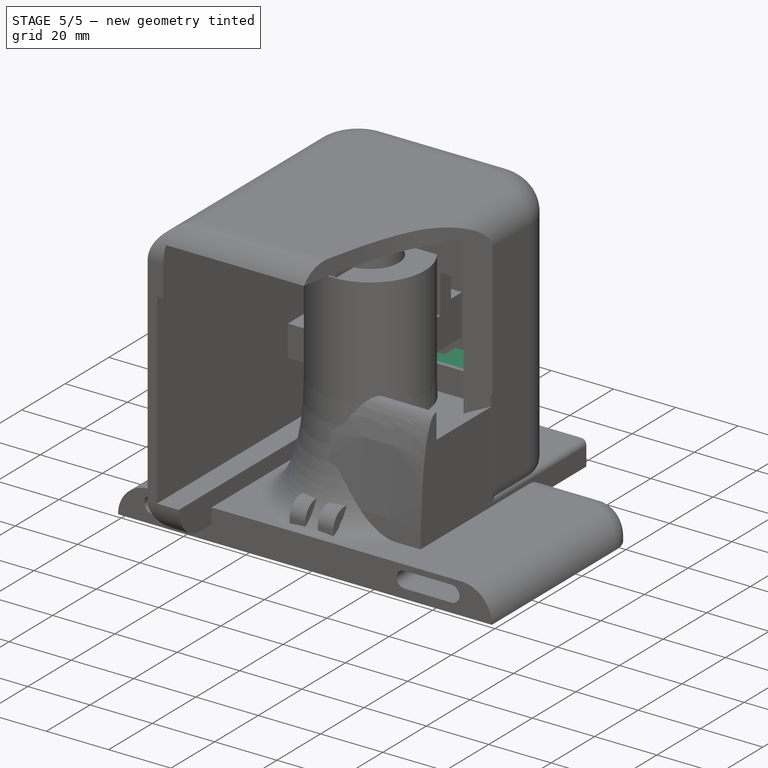
[diagram: stage 5 of 5 — iso view after this stage's code; geometry added in this stage tinted green]
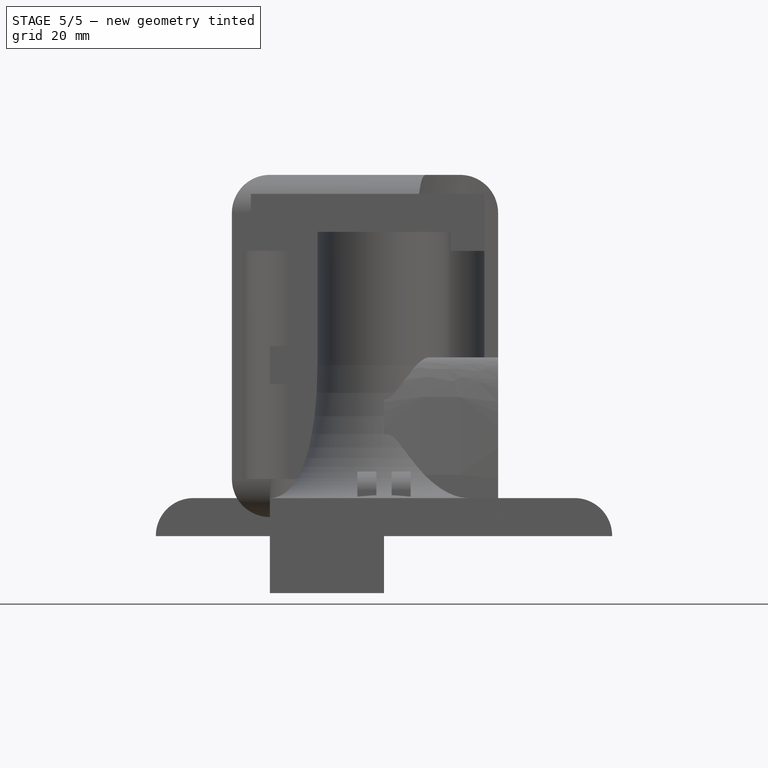
[diagram: stage 5 of 5 — front view after this stage's code; geometry added in this stage tinted green]
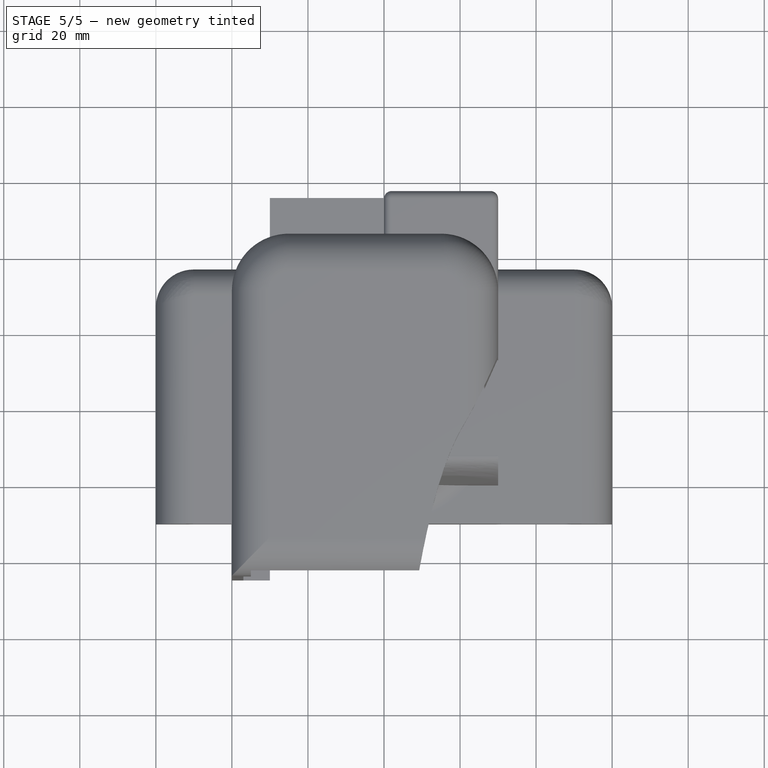
[diagram: stage 5 of 5 — top view after this stage's code; geometry added in this stage tinted green]
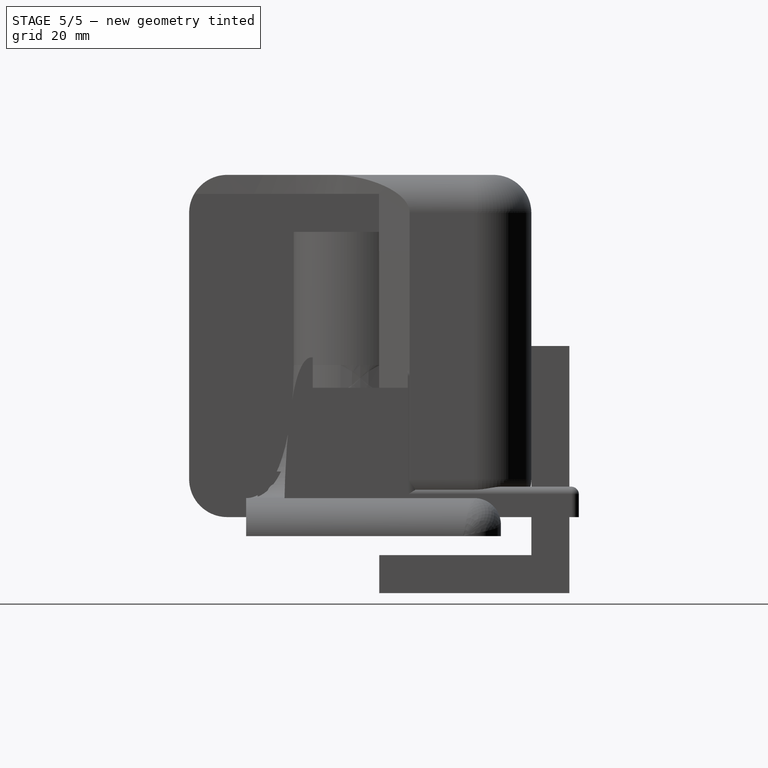
[diagram: stage 5 of 5 — right view after this stage's code; geometry added in this stage tinted green]
FEATURE [Sketcher::SketchObject] Sketch
  ArcFitTolerance = 1e-06
  AttachmentSupport = -> [XY_Plane]
  FullyConstrained = true
  MakeInternals = false
  MapMode = 5
  sketch-geometry (10):
    g0: LineSegment StartX=0 StartY=1 StartZ=0 EndX=17 EndY=1 EndZ=0
    g1: LineSegment StartX=0 StartY=1 StartZ=0 EndX=0 EndY=10 EndZ=0
    g2: LineSegment StartX=17 StartY=1 StartZ=0 EndX=17 EndY=10 EndZ=0
    g3: LineSegment StartX=0 StartY=10 StartZ=0 EndX=-0.5 EndY=10 EndZ=0
    g4: LineSegment StartX=17 StartY=10 StartZ=0 EndX=17.5 EndY=10 EndZ=0
    g5: LineSegment StartX=-0.5 StartY=10 StartZ=0 EndX=-0.5 EndY=22 EndZ=0
    g6: LineSegment StartX=17.5 StartY=10 StartZ=0 EndX=17.5 EndY=22 EndZ=0
    g7: LineSegment StartX=2 StartY=25 StartZ=0 EndX=15 EndY=25 EndZ=0
    g8: LineSegment StartX=2 StartY=25 StartZ=0 EndX=-0.5 EndY=22 EndZ=0
    g9: LineSegment StartX=15 StartY=25 StartZ=0 EndX=17.5 EndY=22 EndZ=0
  constraints (30):
    c: Distance(g3,g-1) = 10
    c: PointOnObject(g1,g-2)
    c: DistanceY(g1,g1) = 9
    c: Equal(g3,g4)
    c: Parallel(g3,g-1)
    c: Coincident(g3,g1)
    c: Parallel(g0,g-1)
    c: DistanceX(g0,g0) = 17
    c: Coincident(g0,g1)
    c: Coincident(g0,g2)
    c: Parallel(g1,g2)
    c: Parallel(g-2,g2)
    c: Equal(g1,g2)
    c: Equal(g5,g6)
    c: Parallel(g-2,g6)
    c: Parallel(g5,g6)
    c: Coincident(g3,g5)
    c: Distance(g3,g3) = 0.5
    c: DistanceY(g5,g5) = 12
    c: Parallel(g4,g-1)
    c: Coincident(g2,g4)
    c: Coincident(g4,g6)
    c: Parallel(g7,g-1)
    c: DistanceX(g7,g7) = 13
    c: Distance(g7,g-2) = 2
    c: Distance(g7,g-1) = 25
    c: Coincident(g5,g8)
    c: Coincident(g7,g8)
    c: Coincident(g7,g9)
    c: Coincident(g6,g9)
FEATURE [PartDesign::Pad] Pad
  Direction = (0,0,1)
  Length = 22
  Length2 = 10
  Profile = -> Sketch
  ReferenceAxis = -> Sketch [N_Axis]
  Suppressed = false
  Type = 0
FEATURE [PartDesign::AdditiveCylinder] Cylinder
  Angle = 360
  AttacherType = Attacher::AttachEngine3D
  AttachmentSupport = -> [XY_Plane001]
  FirstAngle = 0
  Height = 60
  MapMode = 5
  Radius = 8.5
  SecondAngle = 0
  Suppressed = false
FEATURE [PartDesign::Body] Body001  label="Mounting Pipe"
  AllowCompound = false
  Group = -> [Cylinder]
  Origin = -> Origin001
  Placement = pos=(8.5,14.5,0) rot=(0,0,1;0rad)
  Tip = -> Cylinder
FEATURE [PartDesign::AdditiveBox] Box
  AttacherType = Attacher::AttachEngine3D
  AttachmentOffset = pos=(-5.5,-10,0) rot=(0,0,1;0rad)
  AttachmentSupport = -> [Pad]
  BaseFeature = -> Pad
  Height = 11
  Length = 28
  MapMode = 5
  Placement = pos=(-5.5,-10,22) rot=(0,0,1;0rad)
  Suppressed = false
  Width = 44
FEATURE [Sketcher::SketchObject] Sketch001
  ArcFitTolerance = 1e-06
  AttachmentSupport = -> [Box]
  FullyConstrained = true
  MakeInternals = false
  MapMode = 5
  Placement = pos=(-5.5,-10,0) rot=(1,0,0;3.14159rad)
  sketch-geometry (1):
    g0: Circle CenterX=14 CenterY=-24.5 CenterZ=0 NormalX=0 NormalY=0 NormalZ=1 AngleXU=0 Radius=8.75
  constraints (3):
    c: Diameter(g0) = 17.5
    c: Distance(g0,g-1) = 24.5
    c: Distance(g0,g-2) = 14
FEATURE [PartDesign::Pocket] Pocket
  BaseFeature = -> Box
  Direction = (0,0,1)
  Length = 33
  Length2 = 5
  Placement = pos=(-5.5,-10,22) rot=(0,0,1;0rad)
  Profile = -> Sketch001
  ReferenceAxis = -> Sketch001 [N_Axis]
  Suppressed = false
  Type = 0
FEATURE [PartDesign::Fillet] Fillet
  Base = -> Pocket [Edge30,Edge5,Edge1,Edge35,Edge33,Edge2]
  BaseFeature = -> Pocket
  Placement = pos=(-5.5,-10,22) rot=(0,0,1;0rad)
  Radius = 2
  SupportTransform = false
  Suppressed = false
  UseAllEdges = false
FEATURE [Sketcher::SketchObject] Sketch003
  ArcFitTolerance = 1e-06
  AttachmentSupport = -> [Fillet]
  FullyConstrained = true
  MakeInternals = false
  MapMode = 5
  Placement = pos=(22.5,-10,22) rot=(0.57735,0.57735,0.57735;2.0944rad)
  sketch-geometry (2):
    g0: Circle CenterX=7 CenterY=5.5 CenterZ=0 NormalX=0 NormalY=0 NormalZ=1 AngleXU=0 Radius=3
    g1: Circle CenterX=37 CenterY=5.5 CenterZ=0 NormalX=0 NormalY=0 NormalZ=1 AngleXU=0 Radius=3
  constraints (6):
    c: Diameter(g0) = 6
    c: Diameter(g1) = 6
    c: Distance(g1,g-1) = 5.5
    c: Distance(g0,g-1) = 5.5
    c: Distance(g0,g-2) = 7
    c: DistanceX(g-1,g1) = 37
FEATURE [PartDesign::Pocket] Pocket002
  BaseFeature = -> Fillet
  Direction = (-1,0,0)
  Length = 5
  Length2 = 5
  Placement = pos=(-5.5,-10,22) rot=(0,0,1;0rad)
  Profile = -> Sketch003
  ReferenceAxis = -> Sketch003 [N_Axis]
  Suppressed = false
  Type = 1
FEATURE [PartDesign::Body] Body  label="Samsung S27D390H connection"
  AllowCompound = false
  Group = -> [Sketch,Pad,Box,Pocket,Fillet,Sketch001,Sketch003,Pocket002]
  Origin = -> Origin
  Tip = -> Pocket002
FEATURE [PartDesign::AdditiveBox] Box001
  AttacherType = Attacher::AttachEngine3D
  AttachmentOffset = pos=(0,-5,0) rot=(0,0,1;0rad)
  AttachmentSupport = -> [XY_Plane002]
  Height = 33
  Length = 14
  MapMode = 5
  Placement = pos=(0,-5,0) rot=(0,0,1;0rad)
  Suppressed = false
  Width = 44
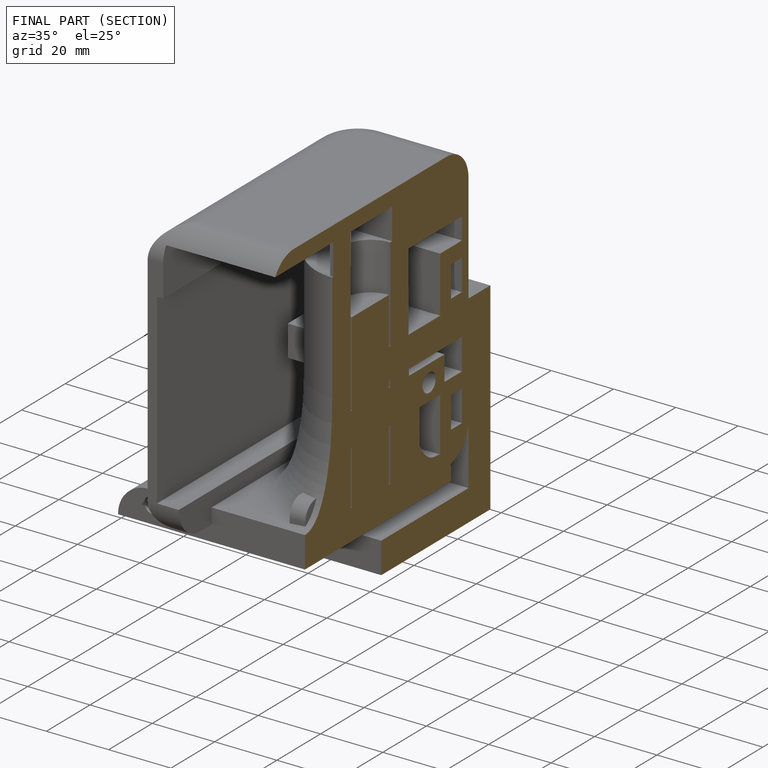
[diagram: finished part — half-section view (interior)]
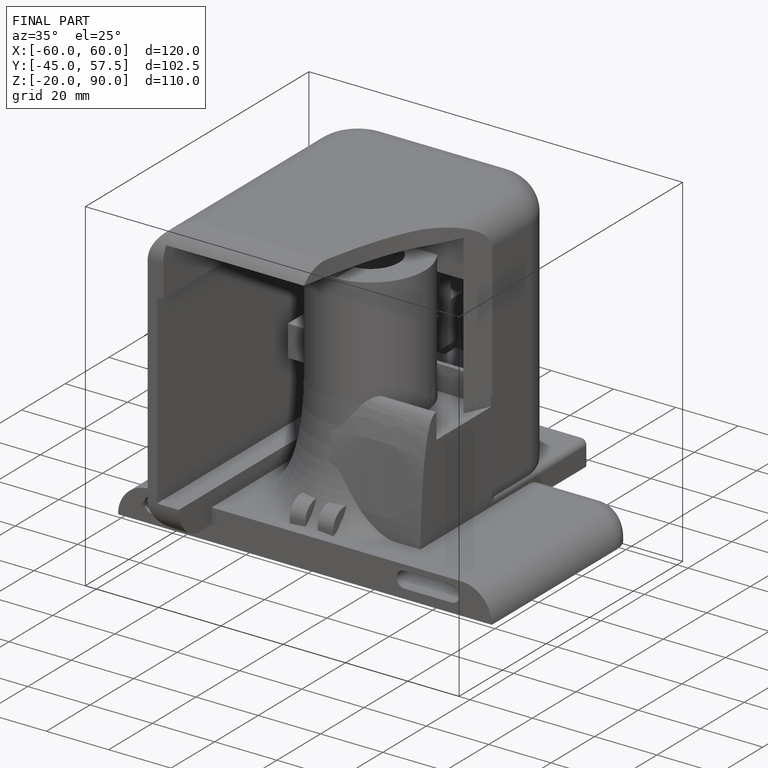
[diagram: finished part — iso view with bounding-box wireframe]
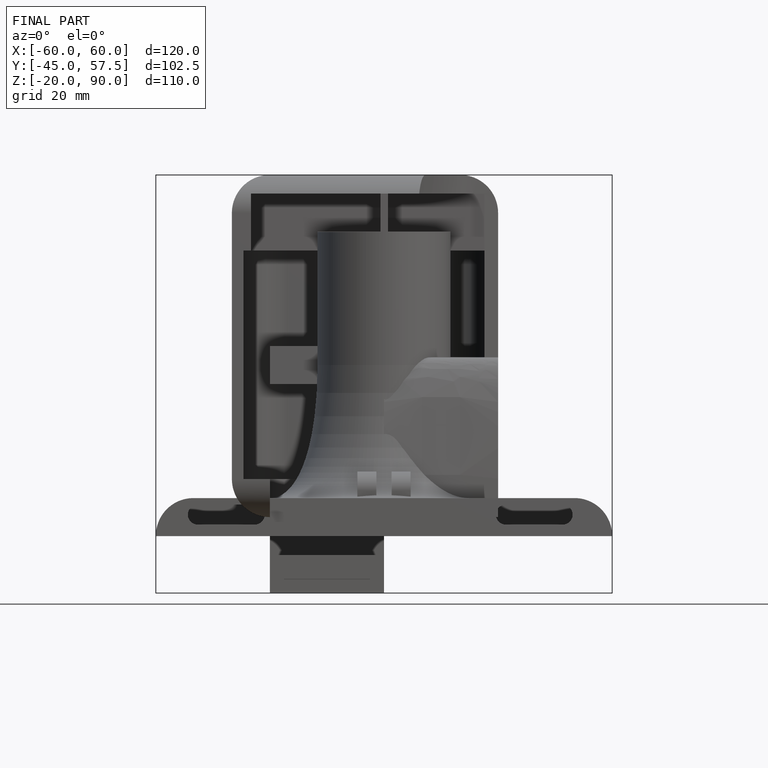
[diagram: finished part — front view with bounding-box wireframe]
